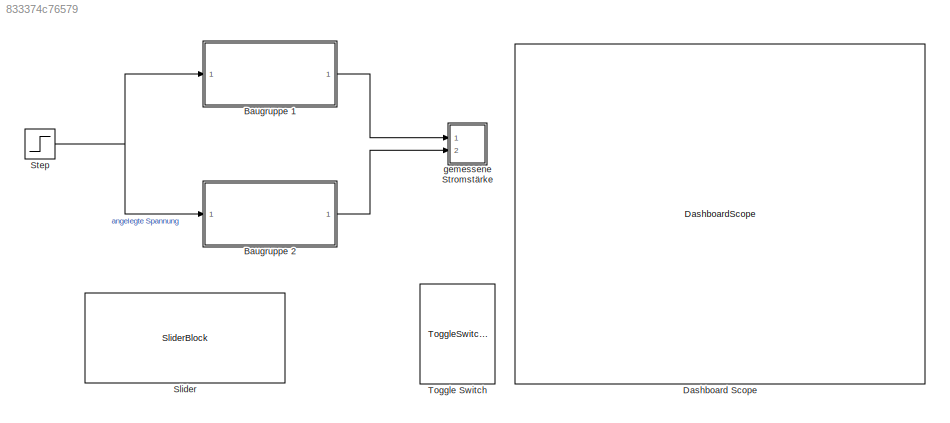
MODEL slx_833374c76579
KIND model
CONFIG AbsTol = auto
CONFIG EnableMultiTasking = off
CONFIG FixedStep = auto
CONFIG MaxStep = auto
CONFIG MinStep = auto
CONFIG RelTol = 1e-3
CONFIG SampleTimeConstraint = Unconstrained
CONFIG SolverName = VariableStepAuto
CONFIG StartTime = 0.0
CONFIG StopTime = 10.0
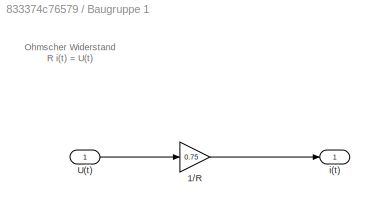
BLOCK [SubSystem] Baugruppe 1
  Ports = [1, 1]
  RequestExecContextInheritance = off
BLOCK [Gain] Baugruppe 1/1//R
  Gain = 0.75
BLOCK [Inport] Baugruppe 1/U(t)
BLOCK [Outport] Baugruppe 1/i(t)
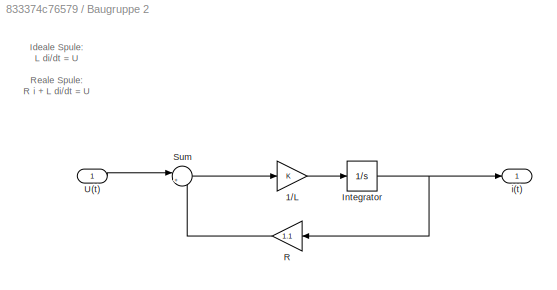
BLOCK [SubSystem] Baugruppe 2
  Ports = [1, 1]
  RequestExecContextInheritance = off
BLOCK [Gain] Baugruppe 2/1//L
BLOCK [Integrator] Baugruppe 2/Integrator
  Ports = [1, 1]
BLOCK [Gain] Baugruppe 2/R
  Gain = 1.1
BLOCK [Sum] Baugruppe 2/Sum
  Inputs = |+-
  Ports = [2, 1]
BLOCK [Inport] Baugruppe 2/U(t)
BLOCK [Outport] Baugruppe 2/i(t)
BLOCK [DashboardScope] Dashboard Scope
BLOCK [SliderBlock] Slider
  LabelPosition = Bottom
  ScaleMax = 10
BLOCK [Step] Step
  SampleTime = 0
  Time = 2.339396284829721
BLOCK [ToggleSwitchBlock] Toggle Switch
  LabelPosition = Hide
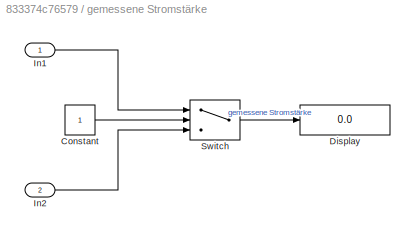
BLOCK [SubSystem] gemessene Stromstärke
  Ports = [2]
  RequestExecContextInheritance = off
BLOCK [Constant] gemessene Stromstärke/Constant
BLOCK [Display] gemessene Stromstärke/Display
  Decimation = 1
  Ports = [1]
BLOCK [Inport] gemessene Stromstärke/In1
BLOCK [Inport] gemessene Stromstärke/In2
  Port = 2
BLOCK [Switch] gemessene Stromstärke/Switch
  Criteria = u2 > Threshold
  InputSameDT = off
  SaturateOnIntegerOverflow = off
ANNOTATION Baugruppe 1: Ohmscher Widerstand R i(t) = U(t)
ANNOTATION Baugruppe 2: Ideale Spule: L di/dt = U Reale Spule: R i + L di/dt = U
LINE Baugruppe 1/1//R:1 -> Baugruppe 1/i(t):1
LINE Baugruppe 1/U(t):1 -> Baugruppe 1/1//R:1
LINE Baugruppe 1:1 -> gemessene Stromstärke:1
LINE Baugruppe 2/1//L:1 -> Baugruppe 2/Integrator:1
NET Baugruppe 2/Integrator:1 -> Baugruppe 2/R:1, Baugruppe 2/i(t):1
LINE Baugruppe 2/R:1 -> Baugruppe 2/Sum:2
LINE Baugruppe 2/Sum:1 -> Baugruppe 2/1//L:1
LINE Baugruppe 2/U(t):1 -> Baugruppe 2/Sum:1
LINE Baugruppe 2:1 -> gemessene Stromstärke:2
NET Step:1 -> Baugruppe 1:1, Baugruppe 2:1
LINE gemessene Stromstärke/Constant:1 -> gemessene Stromstärke/Switch:2
LINE gemessene Stromstärke/In1:1 -> gemessene Stromstärke/Switch:1
LINE gemessene Stromstärke/In2:1 -> gemessene Stromstärke/Switch:3
LINE gemessene Stromstärke/Switch:1 -> gemessene Stromstärke/Display:1
note: NET lines group one-source signal fan-out (src -> all destinations, sorted); 1:1 wires keep LINE
